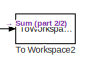
[diagram: root canvas - part 1/2, top left region]
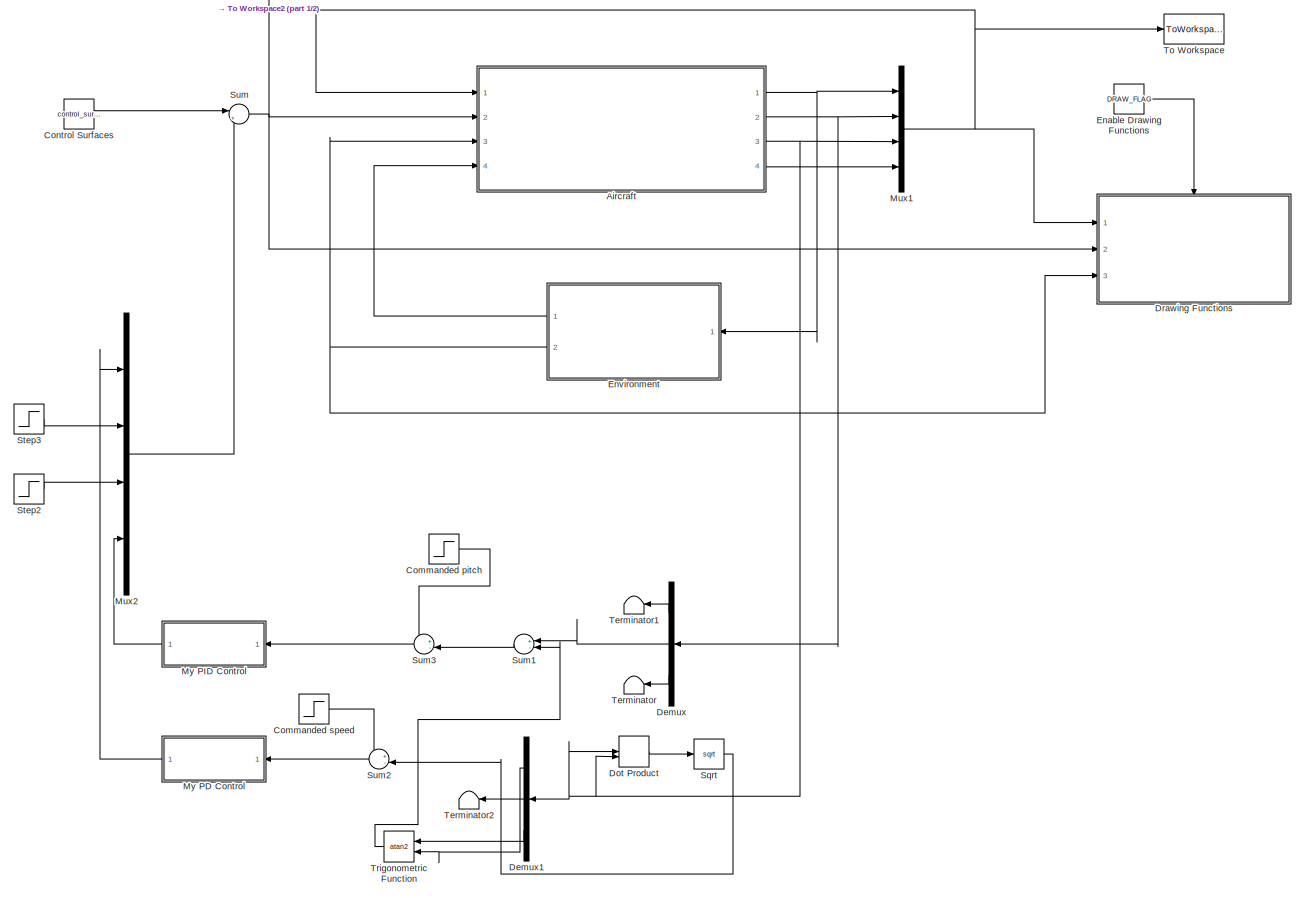
[diagram: root canvas - part 2/2, most of the canvas]
MODEL slx_75412d664dae
KIND model
CONFIG AbsTol = auto
CONFIG FixedStep = auto
CONFIG MaxStep = auto
CONFIG MinStep = auto
CONFIG RelTol = 1e-3
CONFIG SampleTimeConstraint = Unconstrained
CONFIG Solver = ode45
CONFIG SolverMode = Auto
CONFIG SolverName = ode45
CONFIG StartTime = 0.0
CONFIG StopTime = 10000
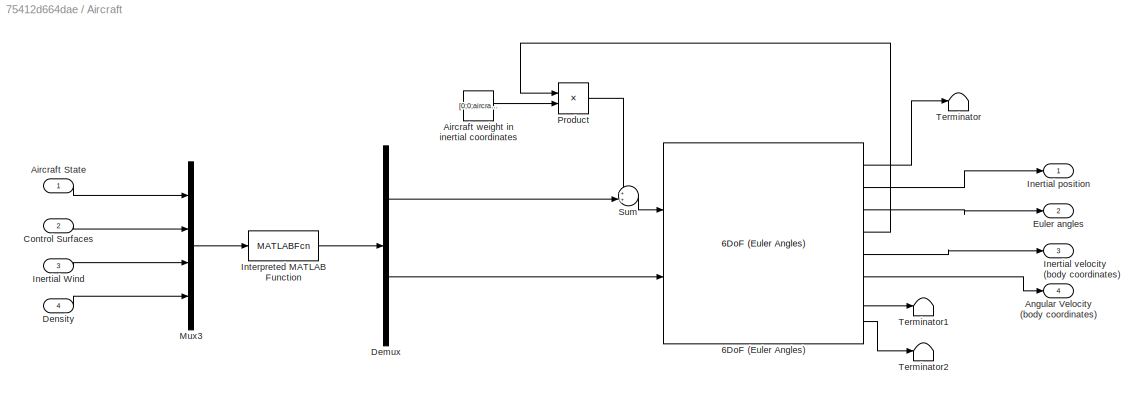
BLOCK [SubSystem] Aircraft
  Ports = [4, 4]
  RequestExecContextInheritance = off
  Variant = off
BLOCK [Reference] Aircraft/6DoF (Euler Angles)  REF=aerolibobsolete/6DoF (Euler Angles)
  Ports = [2, 8]
  SourceBlock = aerolibobsolete/6DoF (Euler Angles)
  SourceType = 6DoF EoM (Body Axis)
BLOCK [Inport] Aircraft/Aircraft State
  IconDisplay = Port number
BLOCK [Constant] Aircraft/Aircraft weight in inertial coordinates
  Value = [0;0;aircraft_parameters.W]
BLOCK [Outport] Aircraft/Angular Velocity (body coordinates)
  IconDisplay = Port number
  Port = 4
BLOCK [Inport] Aircraft/Control Surfaces
  IconDisplay = Port number
  Port = 2
BLOCK [Demux] Aircraft/Demux
  DisplayOption = bar
  Outputs = 2
  Ports = [1, 2]
BLOCK [Inport] Aircraft/Density
  IconDisplay = Port number
  Port = 4
BLOCK [Outport] Aircraft/Euler angles
  IconDisplay = Port number
  Port = 2
BLOCK [Inport] Aircraft/Inertial Wind
  IconDisplay = Port number
  Port = 3
BLOCK [Outport] Aircraft/Inertial position
  IconDisplay = Port number
BLOCK [Outport] Aircraft/Inertial velocity (body coordinates)
  IconDisplay = Port number
  Port = 3
BLOCK [MATLABFcn] Aircraft/Interpreted MATLAB Function
  MATLABFcn = S_AeroForcesAndMoments(u, aircraft_parameters)
  OutputDimensions = 6
  Ports = [1, 1]
BLOCK [Mux] Aircraft/Mux3
  DisplayOption = bar
  Ports = [4, 1]
BLOCK [Product] Aircraft/Product
  InputSameDT = off
  Multiplication = Matrix(*)
  OutDataTypeStr = Inherit: Inherit via internal rule
  Ports = [2, 1]
  SaturateOnIntegerOverflow = off
BLOCK [Sum] Aircraft/Sum
  IconShape = round
  InputSameDT = off
  Inputs = ++|
  OutDataTypeStr = Inherit: Inherit via internal rule
  Ports = [2, 1]
  SaturateOnIntegerOverflow = off
BLOCK [Terminator] Aircraft/Terminator
BLOCK [Terminator] Aircraft/Terminator1
BLOCK [Terminator] Aircraft/Terminator2
BLOCK [Step] Commanded pitch
  After = gamma_trim+gamma_com
  SampleTime = 0
  Time = 0
BLOCK [Step] Commanded speed
  After = V_trim+u_com
  SampleTime = 0
  Time = 0
BLOCK [Constant] Control Surfaces
  Value = control_surfaces_trim
BLOCK [Demux] Demux
  DisplayOption = bar
  Outputs = 3
  Ports = [1, 3]
BLOCK [Demux] Demux1
  DisplayOption = bar
  Outputs = 3
  Ports = [1, 3]
BLOCK [DotProduct] Dot Product
  OutDataTypeStr = Inherit: Inherit via internal rule
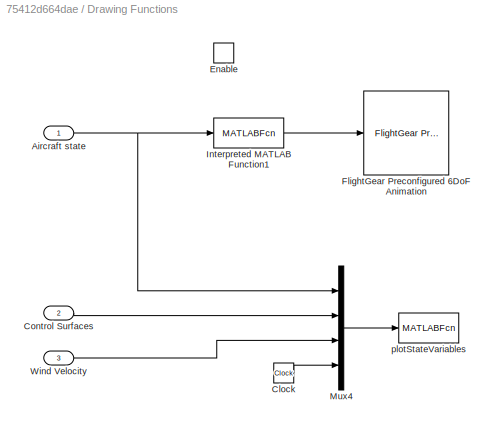
BLOCK [SubSystem] Drawing Functions
  Ports = [3, 0, 1]
  RequestExecContextInheritance = off
  TreatAsAtomicUnit = on
  Variant = off
BLOCK [Inport] Drawing Functions/Aircraft state
  IconDisplay = Port number
BLOCK [Clock] Drawing Functions/Clock
BLOCK [Inport] Drawing Functions/Control Surfaces
  IconDisplay = Port number
  Port = 2
BLOCK [EnablePort] Drawing Functions/Enable
  Ports = []
BLOCK [Reference] Drawing Functions/FlightGear Preconfigured 6DoF Animation  REF=aerolibfltsims/FlightGear
Preconfigured
6DoF Animation
  AttributesFormatString = Version Selected: %<xFlightGearVersion>
  Ports = [1]
  SourceBlock = aerolibfltsims/FlightGear\nPreconfigured\n6DoF Animation
  SourceType = FlightGearQuick6DoFAnimation
BLOCK [MATLABFcn] Drawing Functions/Interpreted MATLAB Function1
  MATLABFcn = FormatForFG(u)
  OutputDimensions = 6
  Ports = [1, 1]
BLOCK [Mux] Drawing Functions/Mux4
  DisplayOption = bar
  Ports = [4, 1]
BLOCK [Inport] Drawing Functions/Wind Velocity
  IconDisplay = Port number
  Port = 3
BLOCK [MATLABFcn] Drawing Functions/plotStateVariables
  MATLABFcn = PlotStateVariables(u)
  OutputDimensions = 0
  Ports = [1]
  SampleTime = .1
BLOCK [Constant] Enable Drawing Functions
  Value = DRAW_FLAG
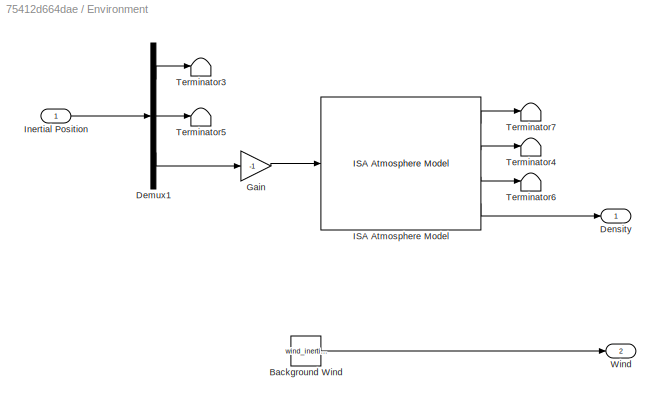
BLOCK [SubSystem] Environment
  Ports = [1, 2]
  RequestExecContextInheritance = off
  Variant = off
BLOCK [Constant] Environment/Background Wind
  Value = wind_inertial
BLOCK [Demux] Environment/Demux1
  DisplayOption = bar
  Outputs = 3
  Ports = [1, 3]
BLOCK [Outport] Environment/Density
  IconDisplay = Port number
BLOCK [Gain] Environment/Gain
  Gain = -1
  OutDataTypeStr = Inherit: Inherit via internal rule
  ParamDataTypeStr = Inherit: Inherit via internal rule
  SaturateOnIntegerOverflow = off
BLOCK [Reference] Environment/ISA Atmosphere Model  REF=aerolibatmos2/ISA Atmosphere Model
  Ports = [1, 4]
  SourceBlock = aerolibatmos2/ISA Atmosphere Model
  SourceType = International Standard Atmosphere Model
BLOCK [Inport] Environment/Inertial Position
  IconDisplay = Port number
BLOCK [Terminator] Environment/Terminator3
BLOCK [Terminator] Environment/Terminator4
BLOCK [Terminator] Environment/Terminator5
BLOCK [Terminator] Environment/Terminator6
BLOCK [Terminator] Environment/Terminator7
BLOCK [Outport] Environment/Wind
  IconDisplay = Port number
  Port = 2
BLOCK [Mux] Mux1
  DisplayOption = bar
  Ports = [4, 1]
BLOCK [Mux] Mux2
  DisplayOption = bar
  Ports = [4, 1]
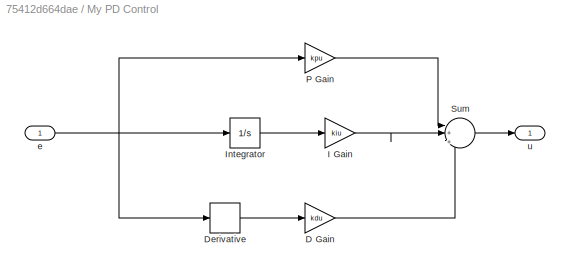
BLOCK [SubSystem] My PD Control
  Ports = [1, 1]
  RequestExecContextInheritance = off
  TreatAsAtomicUnit = on
  Variant = off
BLOCK [Gain] My PD Control/D Gain
  Gain = kdu
  OutDataTypeStr = Inherit: Inherit via internal rule
  ParamDataTypeStr = Inherit: Inherit via internal rule
  SaturateOnIntegerOverflow = off
BLOCK [Derivative] My PD Control/Derivative
BLOCK [Gain] My PD Control/I Gain
  Gain = kiu
  OutDataTypeStr = Inherit: Inherit via internal rule
  ParamDataTypeStr = Inherit: Inherit via internal rule
  SaturateOnIntegerOverflow = off
BLOCK [Integrator] My PD Control/Integrator
  Ports = [1, 1]
BLOCK [Gain] My PD Control/P Gain
  Gain = kpu
  OutDataTypeStr = Inherit: Inherit via internal rule
  ParamDataTypeStr = Inherit: Inherit via internal rule
  SaturateOnIntegerOverflow = off
BLOCK [Sum] My PD Control/Sum
  IconShape = round
  InputSameDT = off
  Inputs = |+|+|+
  OutDataTypeStr = Inherit: Inherit via internal rule
  Ports = [3, 1]
  SaturateOnIntegerOverflow = off
BLOCK [Inport] My PD Control/e
  IconDisplay = Port number
BLOCK [Outport] My PD Control/u
  IconDisplay = Port number
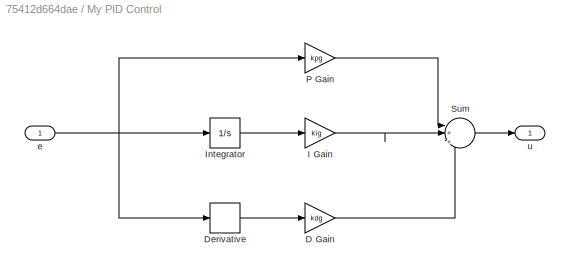
BLOCK [SubSystem] My PID Control
  Ports = [1, 1]
  RequestExecContextInheritance = off
  TreatAsAtomicUnit = on
  Variant = off
BLOCK [Gain] My PID Control/D Gain
  Gain = kdg
  OutDataTypeStr = Inherit: Inherit via internal rule
  ParamDataTypeStr = Inherit: Inherit via internal rule
  SaturateOnIntegerOverflow = off
BLOCK [Derivative] My PID Control/Derivative
BLOCK [Gain] My PID Control/I Gain
  Gain = kig
  OutDataTypeStr = Inherit: Inherit via internal rule
  ParamDataTypeStr = Inherit: Inherit via internal rule
  SaturateOnIntegerOverflow = off
BLOCK [Integrator] My PID Control/Integrator
  Ports = [1, 1]
BLOCK [Gain] My PID Control/P Gain
  Gain = kpg
  OutDataTypeStr = Inherit: Inherit via internal rule
  ParamDataTypeStr = Inherit: Inherit via internal rule
  SaturateOnIntegerOverflow = off
BLOCK [Sum] My PID Control/Sum
  IconShape = round
  InputSameDT = off
  Inputs = |+|+|+
  OutDataTypeStr = Inherit: Inherit via internal rule
  Ports = [3, 1]
  SaturateOnIntegerOverflow = off
BLOCK [Inport] My PID Control/e
  IconDisplay = Port number
BLOCK [Outport] My PID Control/u
  IconDisplay = Port number
BLOCK [Sqrt] Sqrt
BLOCK [Step] Step2
  After = rudder_step_value
  SampleTime = 0
  Time = rudder_step_time
BLOCK [Step] Step3
  After = aileron_step_value
  SampleTime = 0
  Time = aileron_step_time
BLOCK [Sum] Sum
  IconShape = round
  InputSameDT = off
  Inputs = |++
  OutDataTypeStr = Inherit: Inherit via internal rule
  Ports = [2, 1]
  SaturateOnIntegerOverflow = off
BLOCK [Sum] Sum1
  IconShape = round
  InputSameDT = off
  Inputs = +-|
  OutDataTypeStr = Inherit: Inherit via internal rule
  Ports = [2, 1]
  SaturateOnIntegerOverflow = off
BLOCK [Sum] Sum2
  IconShape = round
  InputSameDT = off
  Inputs = +-|
  OutDataTypeStr = Inherit: Inherit via internal rule
  Ports = [2, 1]
  SaturateOnIntegerOverflow = off
BLOCK [Sum] Sum3
  IconShape = round
  InputSameDT = off
  Inputs = +-|
  OutDataTypeStr = Inherit: Inherit via internal rule
  Ports = [2, 1]
  SaturateOnIntegerOverflow = off
BLOCK [Terminator] Terminator
BLOCK [Terminator] Terminator1
BLOCK [Terminator] Terminator2
BLOCK [ToWorkspace] To Workspace
  MaxDataPoints = inf
  Ports = [1]
  SampleTime = -1
  SaveFormat = Timeseries
  VariableName = aircraft_state_array
BLOCK [ToWorkspace] To Workspace2
  MaxDataPoints = inf
  Ports = [1]
  SampleTime = -1
  SaveFormat = Timeseries
  VariableName = control_input_array
BLOCK [Trigonometry] Trigonometric Function
  Operator = atan2
  Ports = [2, 1]
LINE Aircraft/6DoF (Euler Angles):1 -> Aircraft/Terminator:1
LINE Aircraft/6DoF (Euler Angles):2 -> Aircraft/Inertial position:1
LINE Aircraft/6DoF (Euler Angles):3 -> Aircraft/Euler angles:1
LINE Aircraft/6DoF (Euler Angles):4 -> Aircraft/Product:1
LINE Aircraft/6DoF (Euler Angles):5 -> Aircraft/Inertial velocity (body coordinates):1
LINE Aircraft/6DoF (Euler Angles):6 -> Aircraft/Angular Velocity (body coordinates):1
LINE Aircraft/6DoF (Euler Angles):7 -> Aircraft/Terminator1:1
LINE Aircraft/6DoF (Euler Angles):8 -> Aircraft/Terminator2:1
LINE Aircraft/Aircraft State:1 -> Aircraft/Mux3:1
LINE Aircraft/Aircraft weight in inertial coordinates:1 -> Aircraft/Product:2
LINE Aircraft/Control Surfaces:1 -> Aircraft/Mux3:2
LINE Aircraft/Demux:1 -> Aircraft/Sum:2
LINE Aircraft/Demux:2 -> Aircraft/6DoF (Euler Angles):2
LINE Aircraft/Density:1 -> Aircraft/Mux3:4
LINE Aircraft/Inertial Wind:1 -> Aircraft/Mux3:3
LINE Aircraft/Interpreted MATLAB Function:1 -> Aircraft/Demux:1
LINE Aircraft/Mux3:1 -> Aircraft/Interpreted MATLAB Function:1
LINE Aircraft/Product:1 -> Aircraft/Sum:1
LINE Aircraft/Sum:1 -> Aircraft/6DoF (Euler Angles):1
NET Aircraft:1 -> Environment:1, Mux1:1
NET Aircraft:2 -> Demux:1, Mux1:2
NET Aircraft:3 -> Demux1:1, Dot Product:1, Dot Product:2, Mux1:3
LINE Aircraft:4 -> Mux1:4
LINE Commanded pitch:1 -> Sum3:1
LINE Commanded speed:1 -> Sum2:1
LINE Control Surfaces:1 -> Sum:1
LINE Demux1:1 -> Trigonometric Function:2
LINE Demux1:2 -> Terminator2:1
LINE Demux1:3 -> Trigonometric Function:1
LINE Demux:1 -> Terminator1:1
LINE Demux:2 -> Sum1:1
LINE Demux:3 -> Terminator:1
LINE Dot Product:1 -> Sqrt:1
NET Drawing Functions/Aircraft state:1 -> Drawing Functions/Interpreted MATLAB Function1:1, Drawing Functions/Mux4:1
LINE Drawing Functions/Clock:1 -> Drawing Functions/Mux4:4
LINE Drawing Functions/Control Surfaces:1 -> Drawing Functions/Mux4:2
LINE Drawing Functions/Interpreted MATLAB Function1:1 -> Drawing Functions/FlightGear Preconfigured 6DoF Animation:1
LINE Drawing Functions/Mux4:1 -> Drawing Functions/plotStateVariables:1
LINE Drawing Functions/Wind Velocity:1 -> Drawing Functions/Mux4:3
LINE Enable Drawing Functions:1 -> Drawing Functions:enable
LINE Environment/Background Wind:1 -> Environment/Wind:1
LINE Environment/Demux1:1 -> Environment/Terminator3:1
LINE Environment/Demux1:2 -> Environment/Terminator5:1
LINE Environment/Demux1:3 -> Environment/Gain:1
LINE Environment/Gain:1 -> Environment/ISA Atmosphere Model:1
LINE Environment/ISA Atmosphere Model:1 -> Environment/Terminator7:1
LINE Environment/ISA Atmosphere Model:2 -> Environment/Terminator4:1
LINE Environment/ISA Atmosphere Model:3 -> Environment/Terminator6:1
LINE Environment/ISA Atmosphere Model:4 -> Environment/Density:1
LINE Environment/Inertial Position:1 -> Environment/Demux1:1
LINE Environment:1 -> Aircraft:4
NET Environment:2 -> Aircraft:3, Drawing Functions:3
NET Mux1:1 -> Aircraft:1, Drawing Functions:1, To Workspace:1
LINE Mux2:1 -> Sum:2
LINE My PD Control/D Gain:1 -> My PD Control/Sum:3
LINE My PD Control/Derivative:1 -> My PD Control/D Gain:1
LINE My PD Control/I Gain:1 -> My PD Control/Sum:2
LINE My PD Control/Integrator:1 -> My PD Control/I Gain:1
LINE My PD Control/P Gain:1 -> My PD Control/Sum:1
LINE My PD Control/Sum:1 -> My PD Control/u:1
NET My PD Control/e:1 -> My PD Control/Derivative:1, My PD Control/Integrator:1, My PD Control/P Gain:1
LINE My PD Control:1 -> Mux2:1
LINE My PID Control/D Gain:1 -> My PID Control/Sum:3
LINE My PID Control/Derivative:1 -> My PID Control/D Gain:1
LINE My PID Control/I Gain:1 -> My PID Control/Sum:2
LINE My PID Control/Integrator:1 -> My PID Control/I Gain:1
LINE My PID Control/P Gain:1 -> My PID Control/Sum:1
LINE My PID Control/Sum:1 -> My PID Control/u:1
NET My PID Control/e:1 -> My PID Control/Derivative:1, My PID Control/Integrator:1, My PID Control/P Gain:1
LINE My PID Control:1 -> Mux2:4
LINE Sqrt:1 -> Sum2:2
LINE Step2:1 -> Mux2:3
LINE Step3:1 -> Mux2:2
LINE Sum1:1 -> Sum3:2
LINE Sum2:1 -> My PD Control:1
LINE Sum3:1 -> My PID Control:1
NET Sum:1 -> Aircraft:2, Drawing Functions:2, To Workspace2:1
LINE Trigonometric Function:1 -> Sum1:2
note: NET lines group one-source signal fan-out (src -> all destinations, sorted); 1:1 wires keep LINE
